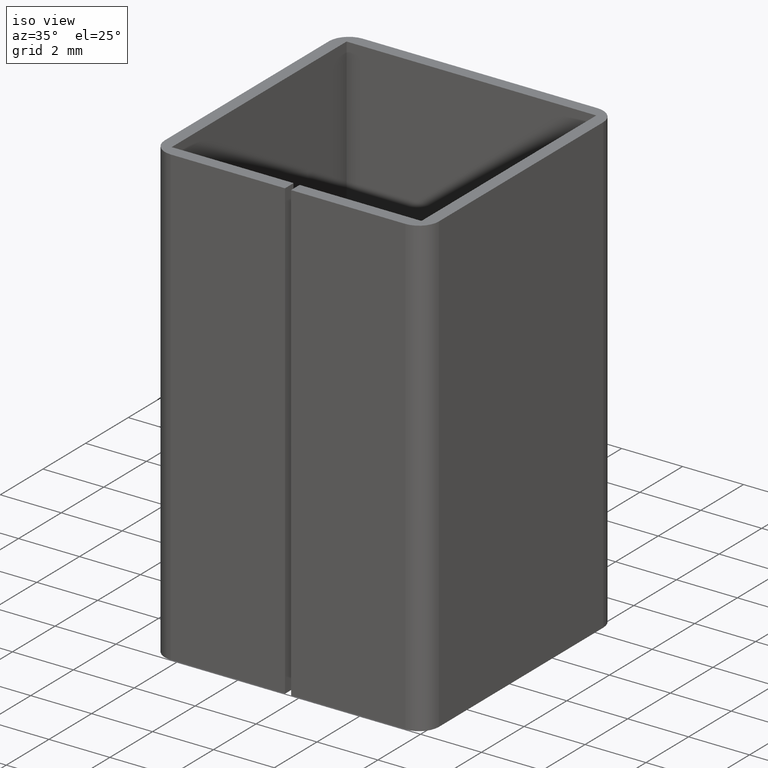
[diagram: clean part render]
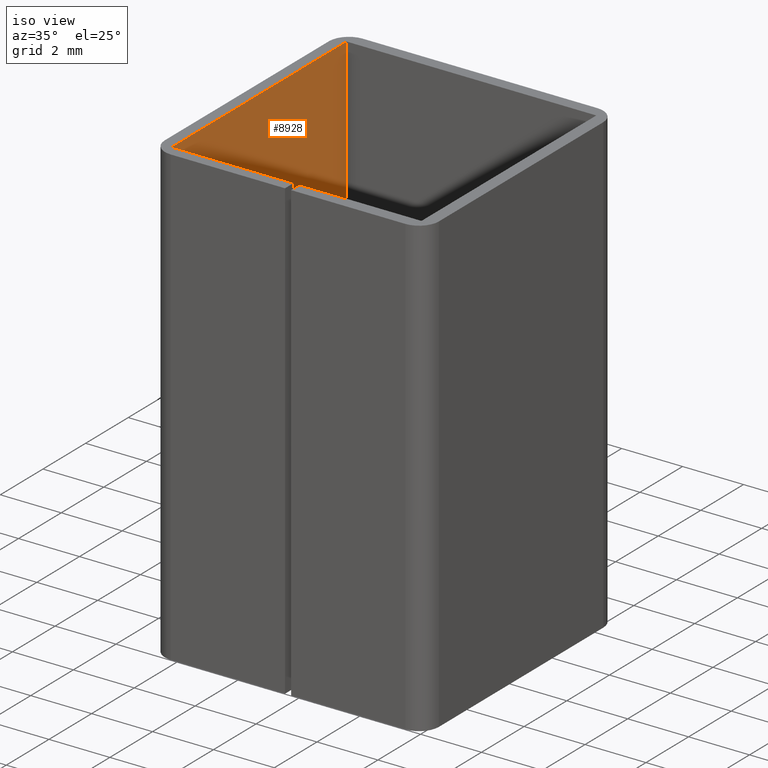
[diagram: same view with one face highlighted and labeled with its STEP entity id]
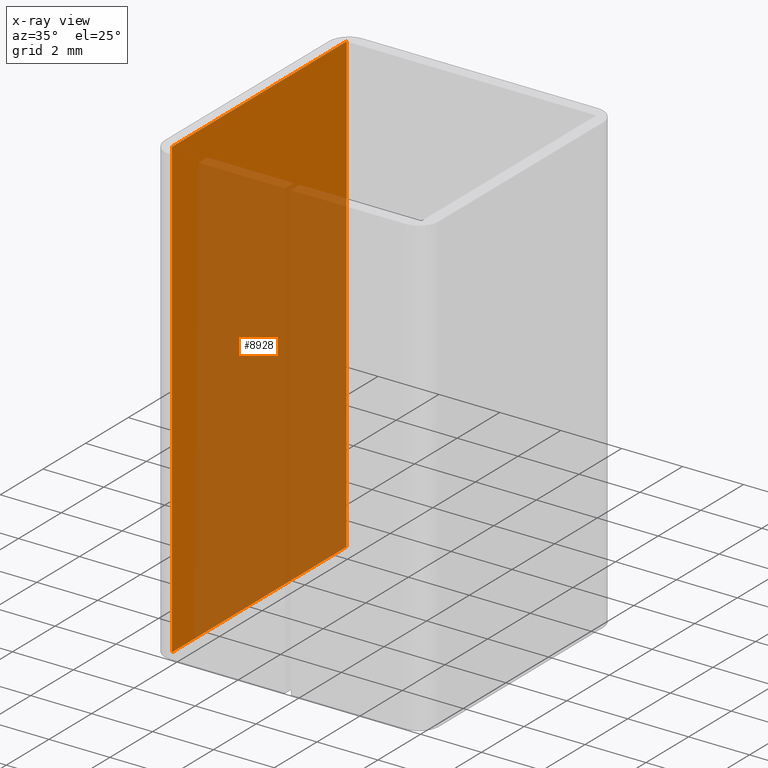
[diagram: x-ray of the same camera — body ghosted, the highlighted face saturated]
A machine part, iso view. The second image highlights one B-rep face of the part: STEP entity #8928.
The next image is the same camera in x-ray: the body ghosted, the highlighted face saturated — about 71% of this face is hidden behind the body in this view.
In plain terms, the highlighted planar face has unit normal (1, 0, -0).
Its self-contained STEP definition (entity closure, byte-faithful):
#219 = LINE ( 'NONE', #8179, #8485 ) ;
#480 = EDGE_CURVE ( 'NONE', #511, #9724, #2886, .T. ) ;
#511 = VERTEX_POINT ( 'NONE', #5892 ) ;
#525 = VECTOR ( 'NONE', #3937, 1000.000000000000000 ) ;
#636 = VERTEX_POINT ( 'NONE', #2837 ) ;
#803 = VERTEX_POINT ( 'NONE', #5741 ) ;
#1004 = DIRECTION ( 'NONE',  ( -0.000000000000000000, -0.000000000000000000, -1.000000000000000000 ) ) ;
#1553 = ORIENTED_EDGE ( 'NONE', *, *, #480, .F. ) ;
#1951 = CARTESIAN_POINT ( 'NONE',  ( -4.100000000000000533, 4.100000000000000533, -7.500000000000000000 ) ) ;
#2319 = CARTESIAN_POINT ( 'NONE',  ( -4.100000000000000533, 4.100000000000000533, 7.500000000000000000 ) ) ;
#2609 = VECTOR ( 'NONE', #10450, 1000.000000000000000 ) ;
#2837 = CARTESIAN_POINT ( 'NONE',  ( -4.100000000000000533, -4.099999999999998757, -7.500000000000000000 ) ) ;
#2886 = LINE ( 'NONE', #2319, #525 ) ;
#3122 = VECTOR ( 'NONE', #5607, 1000.000000000000000 ) ;
#3408 = LINE ( 'NONE', #3972, #3122 ) ;
#3543 = FACE_OUTER_BOUND ( 'NONE', #7896, .T. ) ;
#3937 = DIRECTION ( 'NONE',  ( -0.000000000000000000, -0.000000000000000000, -1.000000000000000000 ) ) ;
#3972 = CARTESIAN_POINT ( 'NONE',  ( -4.100000000000000533, 4.100000000000000533, -7.500000000000000000 ) ) ;
#4785 = CARTESIAN_POINT ( 'NONE',  ( -4.100000000000000533, 4.100000000000000533, 7.500000000000000000 ) ) ;
#5340 = EDGE_CURVE ( 'NONE', #803, #636, #219, .T. ) ;
#5607 = DIRECTION ( 'NONE',  ( 0.000000000000000000, -1.000000000000000000, 0.000000000000000000 ) ) ;
#5686 = LINE ( 'NONE', #4785, #2609 ) ;
#5741 = CARTESIAN_POINT ( 'NONE',  ( -4.100000000000000533, -4.099999999999998757, 7.500000000000000000 ) ) ;
#5814 = DIRECTION ( 'NONE',  ( 1.000000000000000000, 0.000000000000000000, -0.000000000000000000 ) ) ;
#5892 = CARTESIAN_POINT ( 'NONE',  ( -4.100000000000000533, 4.100000000000000533, 7.500000000000000000 ) ) ;
#6201 = ORIENTED_EDGE ( 'NONE', *, *, #7977, .T. ) ;
#6695 = CARTESIAN_POINT ( 'NONE',  ( -4.100000000000000533, 4.100000000000000533, 7.500000000000000000 ) ) ;
#7339 = DIRECTION ( 'NONE',  ( -0.000000000000000000, 0.000000000000000000, -1.000000000000000000 ) ) ;
#7896 = EDGE_LOOP ( 'NONE', ( #10021, #1553, #6201, #9460 ) ) ;
#7977 = EDGE_CURVE ( 'NONE', #511, #803, #5686, .T. ) ;
#8179 = CARTESIAN_POINT ( 'NONE',  ( -4.100000000000000533, -4.099999999999998757, 7.500000000000000000 ) ) ;
#8485 = VECTOR ( 'NONE', #1004, 1000.000000000000000 ) ;
#8928 = ADVANCED_FACE ( 'NONE', ( #3543 ), #9888, .T. ) ;
#9460 = ORIENTED_EDGE ( 'NONE', *, *, #5340, .T. ) ;
#9724 = VERTEX_POINT ( 'NONE', #1951 ) ;
#9888 = PLANE ( 'NONE',  #10125 ) ;
#10021 = ORIENTED_EDGE ( 'NONE', *, *, #10036, .F. ) ;
#10036 = EDGE_CURVE ( 'NONE', #9724, #636, #3408, .T. ) ;
#10125 = AXIS2_PLACEMENT_3D ( 'NONE', #6695, #5814, #7339 ) ;
#10450 = DIRECTION ( 'NONE',  ( 0.000000000000000000, -1.000000000000000000, 0.000000000000000000 ) ) ;